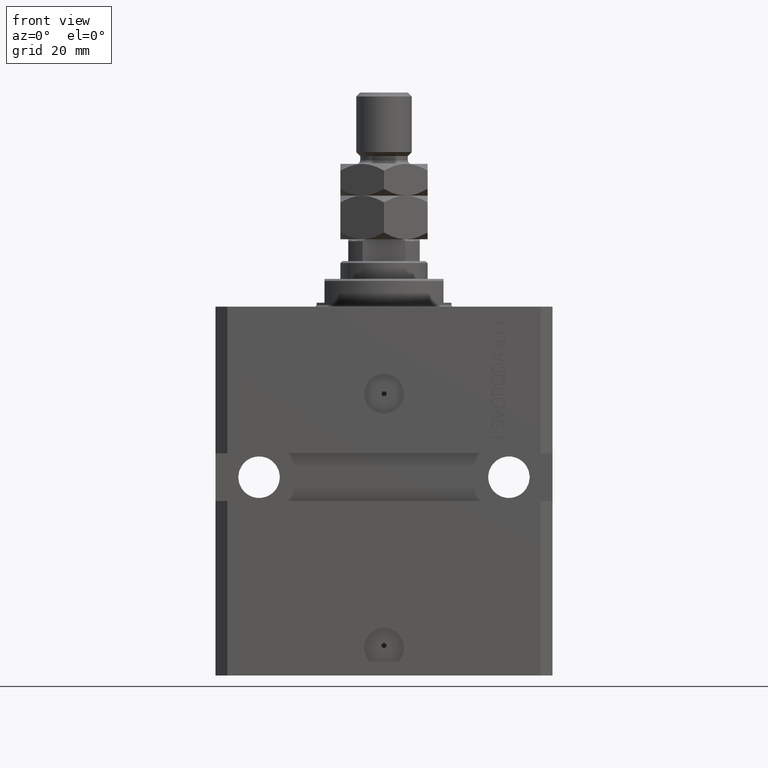
[diagram: clean part render]
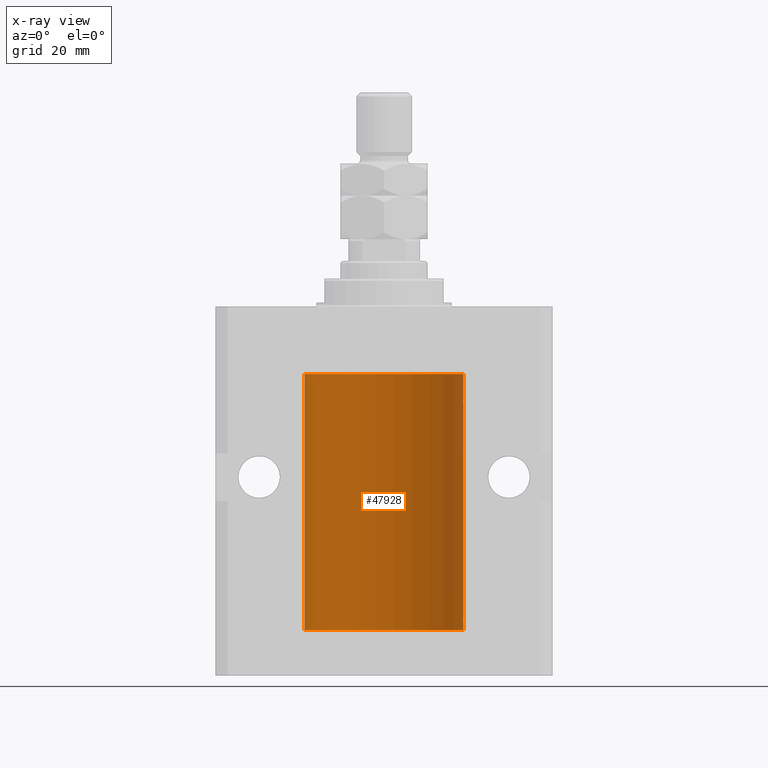
[diagram: x-ray — body ghosted, one internal face saturated and labeled with its STEP entity id]
A machine part, front view, then the same camera in x-ray: the body is ghosted and one INTERNAL B-rep face — a face not visible from any outside direction — is saturated and labeled: STEP entity #47928.
In plain terms, the highlighted cylindrical surface (partial cylindrical patch) has radius 20 mm, axis along (0, 0, 1).
Its self-contained STEP definition (entity closure, byte-faithful):
#697 = EDGE_CURVE ( 'NONE', #36290, #38679, #26814, .T. ) ;
#864 = CARTESIAN_POINT ( 'NONE',  ( 19.99023198964936299, 0.6249999999995806688, -78.83696384779808852 ) ) ;
#1831 = DIRECTION ( 'NONE',  ( -0.000000000000000000, -0.000000000000000000, 1.000000000000000000 ) ) ;
#2097 = CARTESIAN_POINT ( 'NONE',  ( 20.00000000000010303, 3.555666352936568165E-13, -78.37499999999667466 ) ) ;
#3120 = DIRECTION ( 'NONE',  ( 0.000000000000000000, 0.000000000000000000, 1.000000000000000000 ) ) ;
#3688 = DIRECTION ( 'NONE',  ( -0.000000000000000000, -0.000000000000000000, 1.000000000000000000 ) ) ;
#4191 = ORIENTED_EDGE ( 'NONE', *, *, #4351, .T. ) ;
#4234 = CARTESIAN_POINT ( 'NONE',  ( 20.00000000000000000, 1.042771508482559297E-15, -24.62500000000000000 ) ) ;
#4351 = EDGE_CURVE ( 'NONE', #18153, #14185, #6936, .T. ) ;
#4489 = CARTESIAN_POINT ( 'NONE',  ( 19.99023198964933812, 0.6250000000002681189, -24.16311014829328130 ) ) ;
#4604 = CARTESIAN_POINT ( 'NONE',  ( 19.99023198964909298, 0.6250000000081574747, -78.99999999999911893 ) ) ;
#4914 = CARTESIAN_POINT ( 'NONE',  ( 0.000000000000000000, 0.000000000000000000, -81.59999999999999432 ) ) ;
#4957 = EDGE_CURVE ( 'NONE', #42291, #11997, #35984, .T. ) ;
#5337 = CARTESIAN_POINT ( 'NONE',  ( 19.99999999999999645, 0.1631318418333158327, -78.37500000000015632 ) ) ;
#5567 = LINE ( 'NONE', #35418, #41511 ) ;
#6936 = B_SPLINE_CURVE_WITH_KNOTS ( 'NONE', 3,
 ( #4604, #864, #31189, #28693, #5337, #2097 ),
 .UNSPECIFIED., .F., .F.,
 ( 4, 2, 4 ),
 ( 0.0009772989342736221503, 0.001465726722058849005, 0.001954154509844075859 ),
 .UNSPECIFIED. ) ;
#7339 = DIRECTION ( 'NONE',  ( 1.000000000000000000, 0.000000000000000000, 0.000000000000000000 ) ) ;
#7595 = VERTEX_POINT ( 'NONE', #23764 ) ;
#8216 = CARTESIAN_POINT ( 'NONE',  ( 19.99947351343144675, 0.1636818329565319363, -24.60872855715643936 ) ) ;
#8288 = VECTOR ( 'NONE', #3688, 1000.000000000000000 ) ;
#8663 = DIRECTION ( 'NONE',  ( 1.000000000000000000, 0.000000000000000000, 0.000000000000000000 ) ) ;
#8759 = ORIENTED_EDGE ( 'NONE', *, *, #37561, .F. ) ;
#8808 = EDGE_CURVE ( 'NONE', #11997, #36290, #13047, .T. ) ;
#10213 = CIRCLE ( 'NONE', #22908, 20.00000000000000000 ) ;
#10612 = AXIS2_PLACEMENT_3D ( 'NONE', #29666, #15203, #33892 ) ;
#11056 = VERTEX_POINT ( 'NONE', #19832 ) ;
#11530 = VECTOR ( 'NONE', #22956, 1000.000000000000000 ) ;
#11997 = VERTEX_POINT ( 'NONE', #28325 ) ;
#12215 = CARTESIAN_POINT ( 'NONE',  ( 20.00000000000010303, 3.555666340528858977E-13, -23.37499999999667111 ) ) ;
#12323 = CARTESIAN_POINT ( 'NONE',  ( -20.00000000000000000, 2.449293598294706513E-15, -81.59999999999999432 ) ) ;
#12522 = CARTESIAN_POINT ( 'NONE',  ( 20.00000000000010303, 3.555666340528858977E-13, -23.37499999999667111 ) ) ;
#12899 = AXIS2_PLACEMENT_3D ( 'NONE', #17780, #3120, #7339 ) ;
#13047 = B_SPLINE_CURVE_WITH_KNOTS ( 'NONE', 3,
 ( #30640, #38109, #23654, #15460, #27643, #12215 ),
 .UNSPECIFIED., .F., .F.,
 ( 4, 2, 4 ),
 ( 0.0009772989342736214998, 0.001465726722058845102, 0.001954154509844068920 ),
 .UNSPECIFIED. ) ;
#13948 = ORIENTED_EDGE ( 'NONE', *, *, #19190, .T. ) ;
#14185 = VERTEX_POINT ( 'NONE', #42623 ) ;
#14870 = VERTEX_POINT ( 'NONE', #12323 ) ;
#14945 = CARTESIAN_POINT ( 'NONE',  ( 19.99023198964934167, 0.6250000000002757794, -79.16311014829327064 ) ) ;
#15009 = CARTESIAN_POINT ( 'NONE',  ( 20.00000000000000000, 0.000000000000000000, -81.59999999999999432 ) ) ;
#15203 = DIRECTION ( 'NONE',  ( -0.000000000000000000, -0.000000000000000000, 1.000000000000000000 ) ) ;
#15460 = CARTESIAN_POINT ( 'NONE',  ( 19.99769474220010679, 0.3253030616682399678, -23.44140633897632142 ) ) ;
#15518 = CARTESIAN_POINT ( 'NONE',  ( 19.99023198964909298, 0.6250000000081574747, -78.99999999999911893 ) ) ;
#16143 = CARTESIAN_POINT ( 'NONE',  ( 19.99638788807192924, 0.3844440352705356112, -24.49948058986480603 ) ) ;
#16624 = VECTOR ( 'NONE', #26580, 1000.000000000000000 ) ;
#17780 = CARTESIAN_POINT ( 'NONE',  ( 0.000000000000000000, 0.000000000000000000, -17.00000000000000000 ) ) ;
#18153 = VERTEX_POINT ( 'NONE', #15518 ) ;
#18417 = CARTESIAN_POINT ( 'NONE',  ( 20.00000000000000000, -4.058908006348821872E-15, -79.62500000000000000 ) ) ;
#19027 = EDGE_CURVE ( 'NONE', #38679, #23538, #33584, .T. ) ;
#19190 = EDGE_CURVE ( 'NONE', #14185, #42291, #5567, .T. ) ;
#19375 = CARTESIAN_POINT ( 'NONE',  ( 19.99999999999999645, 0.08261455565447869964, -24.62499999999998579 ) ) ;
#19621 = CARTESIAN_POINT ( 'NONE',  ( 19.99023198964909298, 0.6250000000081508134, -23.99999999999910472 ) ) ;
#19832 = CARTESIAN_POINT ( 'NONE',  ( 20.00000000000000000, -4.058908006348821872E-15, -79.62500000000000000 ) ) ;
#20051 = DIRECTION ( 'NONE',  ( 0.000000000000000000, 0.000000000000000000, 1.000000000000000000 ) ) ;
#22550 = EDGE_CURVE ( 'NONE', #11056, #18153, #38041, .T. ) ;
#22908 = AXIS2_PLACEMENT_3D ( 'NONE', #4914, #20051, #8663 ) ;
#22956 = DIRECTION ( 'NONE',  ( -0.000000000000000000, -0.000000000000000000, 1.000000000000000000 ) ) ;
#23538 = VERTEX_POINT ( 'NONE', #43365 ) ;
#23654 = CARTESIAN_POINT ( 'NONE',  ( 19.99253733128256272, 0.5586305947778931191, -23.67476036735258305 ) ) ;
#23764 = CARTESIAN_POINT ( 'NONE',  ( 20.00000000000000000, 0.000000000000000000, -81.59999999999999432 ) ) ;
#25418 = CARTESIAN_POINT ( 'NONE',  ( 19.99999999999999645, 0.08261455565447825555, -79.62499999999997158 ) ) ;
#25907 = CARTESIAN_POINT ( 'NONE',  ( 19.99766100389833312, 0.3150982863324784944, -79.54594438241281296 ) ) ;
#26580 = DIRECTION ( 'NONE',  ( -0.000000000000000000, -0.000000000000000000, 1.000000000000000000 ) ) ;
#26814 = LINE ( 'NONE', #27049, #8288 ) ;
#26986 = ORIENTED_EDGE ( 'NONE', *, *, #34758, .F. ) ;
#27049 = CARTESIAN_POINT ( 'NONE',  ( 20.00000000000000000, 0.000000000000000000, -81.59999999999999432 ) ) ;
#27643 = CARTESIAN_POINT ( 'NONE',  ( 19.99999999999999645, 0.1631318418333146114, -23.37500000000016698 ) ) ;
#28325 = CARTESIAN_POINT ( 'NONE',  ( 19.99023198964909298, 0.6250000000081508134, -23.99999999999910472 ) ) ;
#28622 = EDGE_CURVE ( 'NONE', #7595, #11056, #30185, .T. ) ;
#28693 = CARTESIAN_POINT ( 'NONE',  ( 19.99769474220011034, 0.3253030616682413001, -78.44140633897630721 ) ) ;
#29396 = CARTESIAN_POINT ( 'NONE',  ( 19.99023198964909298, 0.6250000000081574747, -78.99999999999911893 ) ) ;
#29635 = CARTESIAN_POINT ( 'NONE',  ( 19.99947351343144319, 0.1636818329565372654, -79.60872855715646779 ) ) ;
#29666 = CARTESIAN_POINT ( 'NONE',  ( 0.000000000000000000, 0.000000000000000000, -81.59999999999999432 ) ) ;
#29913 = CYLINDRICAL_SURFACE ( 'NONE', #10612, 20.00000000000000000 ) ;
#30070 = LINE ( 'NONE', #33804, #16624 ) ;
#30185 = LINE ( 'NONE', #15009, #11530 ) ;
#30640 = CARTESIAN_POINT ( 'NONE',  ( 19.99023198964909298, 0.6250000000081508134, -23.99999999999910472 ) ) ;
#31189 = CARTESIAN_POINT ( 'NONE',  ( 19.99253733128256627, 0.5586305947779004466, -78.67476036735259015 ) ) ;
#31316 = CARTESIAN_POINT ( 'NONE',  ( 19.99256353007439202, 0.5574106582031151946, -24.32639035180115172 ) ) ;
#31578 = CARTESIAN_POINT ( 'NONE',  ( 20.00000000000000000, 0.000000000000000000, -17.00000000000000000 ) ) ;
#32439 = ORIENTED_EDGE ( 'NONE', *, *, #4957, .T. ) ;
#33584 = CIRCLE ( 'NONE', #12899, 20.00000000000000000 ) ;
#33804 = CARTESIAN_POINT ( 'NONE',  ( -20.00000000000000000, 2.449293598294706513E-15, -81.59999999999999432 ) ) ;
#33892 = DIRECTION ( 'NONE',  ( 1.000000000000000000, 0.000000000000000000, 0.000000000000000000 ) ) ;
#34758 = EDGE_CURVE ( 'NONE', #7595, #14870, #10213, .T. ) ;
#35418 = CARTESIAN_POINT ( 'NONE',  ( 20.00000000000000000, 0.000000000000000000, -81.59999999999999432 ) ) ;
#35984 = B_SPLINE_CURVE_WITH_KNOTS ( 'NONE', 3,
 ( #4234, #19375, #8216, #38556, #16143, #31316, #4489, #19621 ),
 .UNSPECIFIED., .F., .F.,
 ( 4, 2, 2, 4 ),
 ( 1.013370767385449693E-18, 0.0002443247335684061339, 0.0004886494671368111836, 0.0009772989342736214998 ),
 .UNSPECIFIED. ) ;
#36290 = VERTEX_POINT ( 'NONE', #12522 ) ;
#36330 = ORIENTED_EDGE ( 'NONE', *, *, #19027, .T. ) ;
#36436 = CARTESIAN_POINT ( 'NONE',  ( 20.00000000000000000, 1.042771508482559297E-15, -24.62500000000000000 ) ) ;
#37561 = EDGE_CURVE ( 'NONE', #14870, #23538, #30070, .T. ) ;
#37644 = ORIENTED_EDGE ( 'NONE', *, *, #8808, .T. ) ;
#38041 = B_SPLINE_CURVE_WITH_KNOTS ( 'NONE', 3,
 ( #18417, #25418, #29635, #25907, #49033, #41332, #14945, #29396 ),
 .UNSPECIFIED., .F., .F.,
 ( 4, 2, 2, 4 ),
 ( 3.944467879762244826E-18, 0.0002443247335684012008, 0.0004886494671367983900, 0.0009772989342736221503 ),
 .UNSPECIFIED. ) ;
#38109 = CARTESIAN_POINT ( 'NONE',  ( 19.99023198964935588, 0.6249999999995746736, -23.83696384779806721 ) ) ;
#38556 = CARTESIAN_POINT ( 'NONE',  ( 19.99766100389832957, 0.3150982863324730543, -24.54594438241278453 ) ) ;
#38679 = VERTEX_POINT ( 'NONE', #31578 ) ;
#41067 = ORIENTED_EDGE ( 'NONE', *, *, #697, .T. ) ;
#41332 = CARTESIAN_POINT ( 'NONE',  ( 19.99256353007439202, 0.5574106582031174151, -79.32639035180115172 ) ) ;
#41360 = FACE_OUTER_BOUND ( 'NONE', #43547, .T. ) ;
#41511 = VECTOR ( 'NONE', #1831, 1000.000000000000000 ) ;
#42291 = VERTEX_POINT ( 'NONE', #36436 ) ;
#42623 = CARTESIAN_POINT ( 'NONE',  ( 20.00000000000010303, 3.555666352936568165E-13, -78.37499999999667466 ) ) ;
#43365 = CARTESIAN_POINT ( 'NONE',  ( -20.00000000000000000, 2.449293598294706513E-15, -17.00000000000000000 ) ) ;
#43547 = EDGE_LOOP ( 'NONE', ( #8759, #26986, #47141, #45503, #4191, #13948, #32439, #37644, #41067, #36330 ) ) ;
#45503 = ORIENTED_EDGE ( 'NONE', *, *, #22550, .T. ) ;
#47141 = ORIENTED_EDGE ( 'NONE', *, *, #28622, .T. ) ;
#47928 = ADVANCED_FACE ( 'NONE', ( #41360 ), #29913, .F. ) ;
#49033 = CARTESIAN_POINT ( 'NONE',  ( 19.99638788807192924, 0.3844440352705359998, -79.49948058986481669 ) ) ;